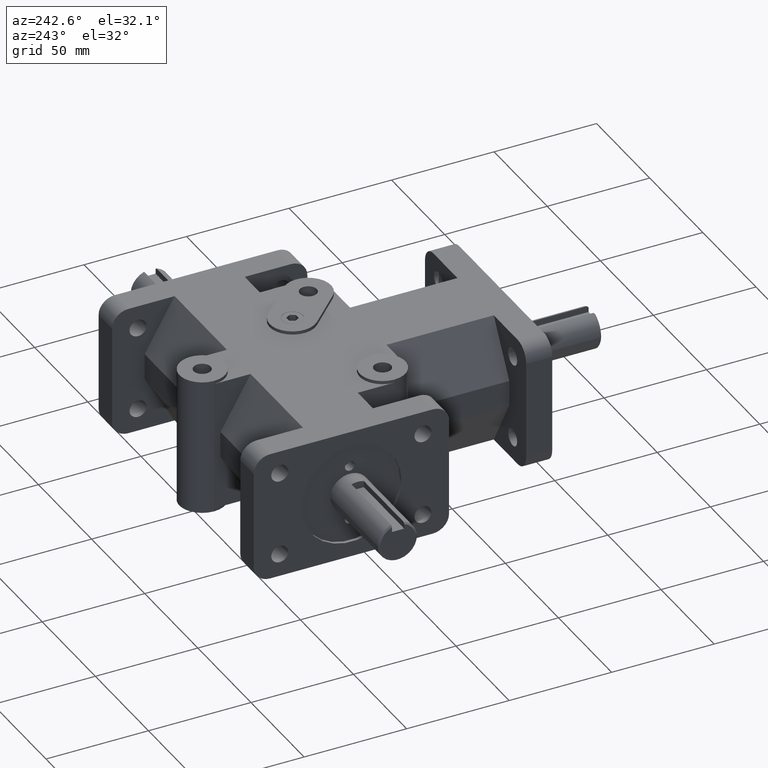
[diagram: clean part render]
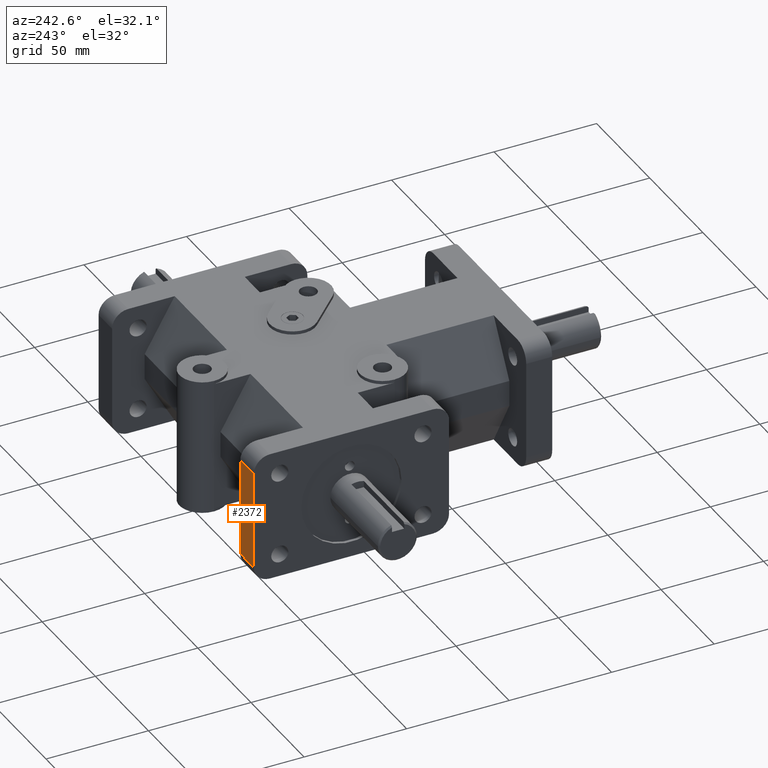
[diagram: same view with one face highlighted and labeled with its STEP entity id]
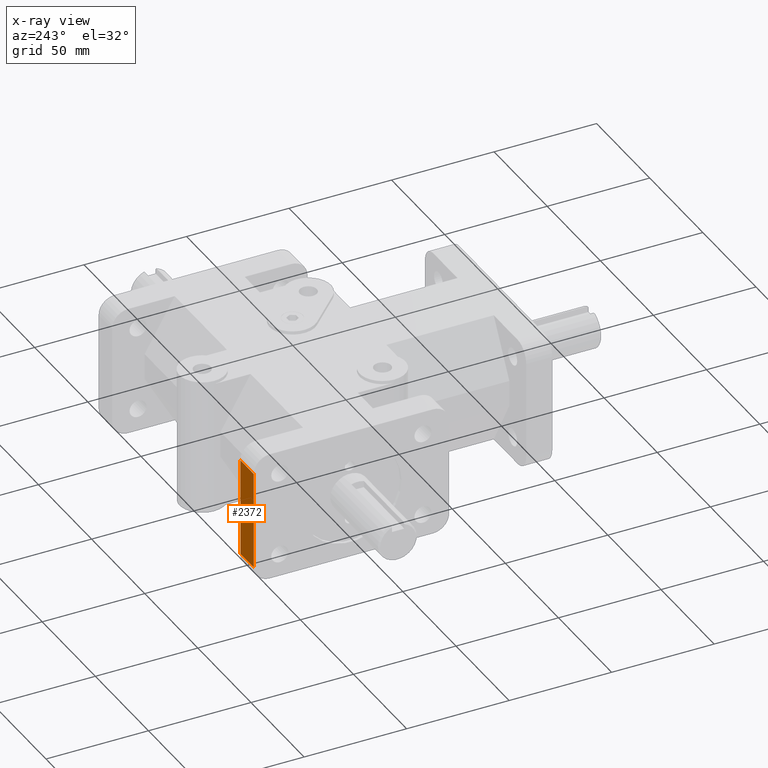
[diagram: x-ray of the same camera — body ghosted, the highlighted face saturated]
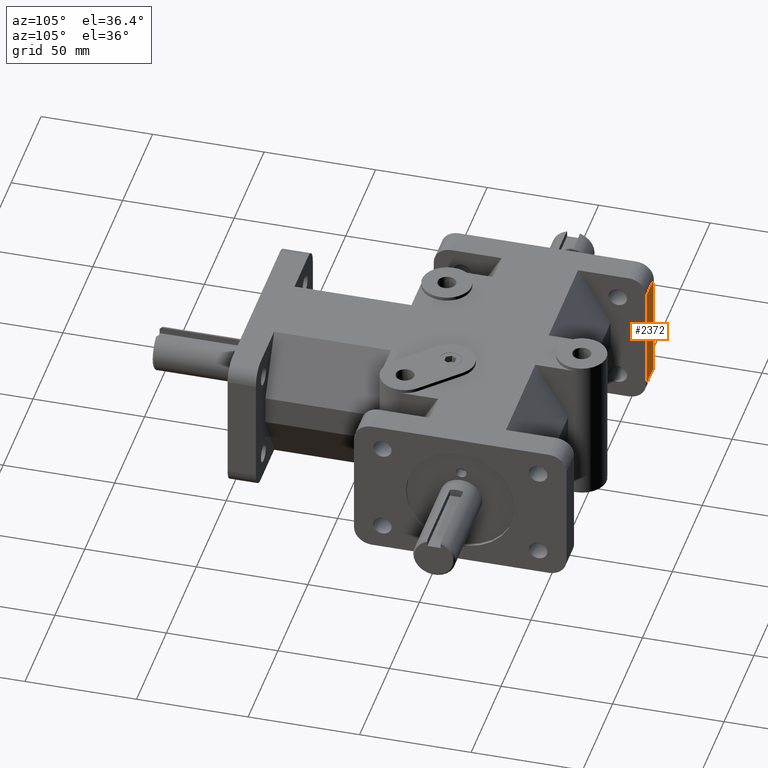
[diagram: same view with one face highlighted and labeled with its STEP entity id]
A machine part, auxiliary view. The second image highlights one B-rep face of the part: STEP entity #2372.
The next image is the same camera in x-ray: the body ghosted, the highlighted face saturated — about 0% of this face is hidden behind the body in this view.
A second angle (auxiliary view) of the same face is appended — the face is thin or edge-on in the first view.
In plain terms, the highlighted planar face has unit normal (0, 1, 0).
Its self-contained STEP definition (entity closure, byte-faithful):
#125=PLANE('',#2621);
#253=FACE_OUTER_BOUND('',#412,.T.);
#412=EDGE_LOOP('',(#2095,#2096,#2097,#2098));
#514=LINE('',#3617,#736);
#517=LINE('',#3629,#739);
#657=LINE('',#3995,#879);
#658=LINE('',#3997,#880);
#736=VECTOR('',#2907,1.);
#739=VECTOR('',#2918,1.);
#879=VECTOR('',#3272,1.);
#880=VECTOR('',#3275,1.);
#1097=VERTEX_POINT('',#3614);
#1098=VERTEX_POINT('',#3616);
#1100=VERTEX_POINT('',#3622);
#1103=VERTEX_POINT('',#3627);
#1345=EDGE_CURVE('',#1097,#1098,#514,.T.);
#1351=EDGE_CURVE('',#1103,#1100,#517,.T.);
#1540=EDGE_CURVE('',#1103,#1098,#657,.T.);
#1541=EDGE_CURVE('',#1100,#1097,#658,.T.);
#2095=ORIENTED_EDGE('',*,*,#1345,.F.);
#2096=ORIENTED_EDGE('',*,*,#1541,.F.);
#2097=ORIENTED_EDGE('',*,*,#1351,.F.);
#2098=ORIENTED_EDGE('',*,*,#1540,.T.);
#2372=ADVANCED_FACE('',(#253),#125,.T.);
#2621=AXIS2_PLACEMENT_3D('',#3996,#3273,#3274);
#2907=DIRECTION('',(1.,0.,0.));
#2918=DIRECTION('',(-1.,0.,0.));
#3272=DIRECTION('',(0.,0.,-1.));
#3273=DIRECTION('center_axis',(0.,1.,0.));
#3274=DIRECTION('ref_axis',(0.,0.,-1.));
#3275=DIRECTION('',(0.,0.,-1.));
#3614=CARTESIAN_POINT('',(-73.025,158.75,-23.876));
#3616=CARTESIAN_POINT('',(-60.325,158.75,-23.876));
#3617=CARTESIAN_POINT('',(-30.1625,158.75,-23.876));
#3622=CARTESIAN_POINT('',(-73.025,158.75,23.876));
#3627=CARTESIAN_POINT('',(-60.325,158.75,23.876));
#3629=CARTESIAN_POINT('',(-30.1625,158.75,23.876));
#3995=CARTESIAN_POINT('',(-60.325,158.75,0.));
#3996=CARTESIAN_POINT('Origin',(-60.325,158.75,0.));
#3997=CARTESIAN_POINT('',(-73.025,158.75,0.));